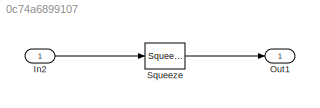
MODEL slx_0c74a6899107
KIND model
CONFIG AbsTol = auto
CONFIG EnableMultiTasking = on
CONFIG FixedStep = 0.200000
CONFIG MaxStep = auto
CONFIG MinStep = auto
CONFIG RelTol = 1e-3
CONFIG SampleTimeConstraint = Unconstrained
CONFIG Solver = FixedStepDiscrete
CONFIG SolverName = FixedStepDiscrete
CONFIG StartTime = 0.0
CONFIG StopTime = 19.8
BLOCK [Inport] In2
  IconDisplay = Port number
  PortDimensions = [2 1 4]
BLOCK [Outport] Out1
  IconDisplay = Port number
BLOCK [Squeeze] Squeeze
LINE In2:1 -> Squeeze:1
LINE Squeeze:1 -> Out1:1
